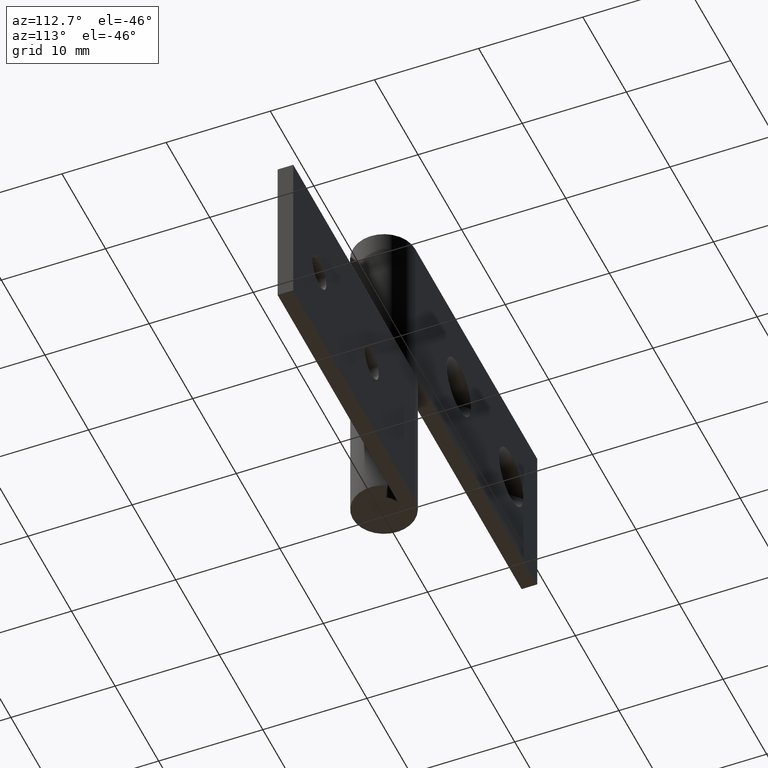
[diagram: clean part render]
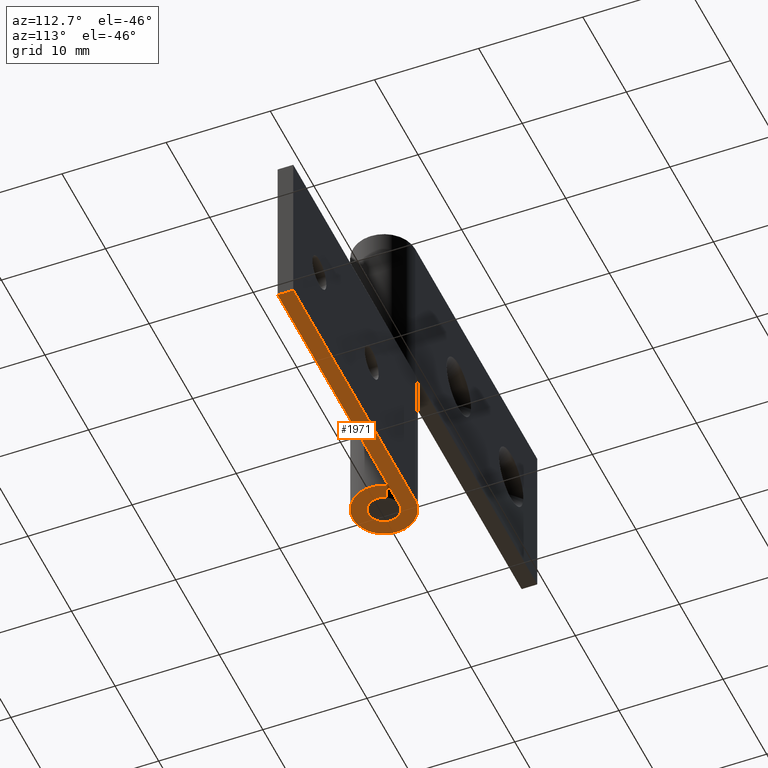
[diagram: same view with one face highlighted and labeled with its STEP entity id]
A machine part, auxiliary view. The second image highlights one B-rep face of the part: STEP entity #1971.
In plain terms, the highlighted face is a freeform B-spline surface patch.
Its self-contained STEP definition (entity closure, byte-faithful):
#1894=CARTESIAN_POINT('',(-4.548398241975407,-3.299492229896964,0.0));
#1895=CARTESIAN_POINT('',(29.548454369752811,-3.299492229896964,0.0));
#1896=CARTESIAN_POINT('',(-4.548398241975407,3.299690265460375,0.0));
#1897=CARTESIAN_POINT('',(29.548454369752811,3.299690265460375,0.0));
#1898=B_SPLINE_SURFACE_WITH_KNOTS('',1,1,((#1894,#1896),(#1895,#1897)),.UNSPECIFIED.,.F.,.F.,.U.,(2,2),(2,2),(0.0,34.096852611728217),(0.0,6.599182495357339),.UNSPECIFIED.);
#1899=CARTESIAN_POINT('',(2.626309197333780,1.450000000000000,0.0));
#1900=VERTEX_POINT('',#1899);
#1901=CARTESIAN_POINT('',(0.0,3.0,0.0));
#1902=VERTEX_POINT('',#1901);
#1903=CARTESIAN_POINT('',(2.626309197333780,1.450000000000000,0.0));
#1904=CARTESIAN_POINT('',(3.733431584505770,-0.555272902071675,0.0));
#1905=CARTESIAN_POINT('',(2.090650590886091,-2.151552952364324,0.0));
#1906=CARTESIAN_POINT('',(0.447869597266413,-3.747833002656972,0.0));
#1907=CARTESIAN_POINT('',(-1.524795068197689,-2.583602136552764,0.0));
#1908=CARTESIAN_POINT('',(-3.497459733661792,-1.419371270448555,0.0));
#1909=CARTESIAN_POINT('',(-2.894028888043301,0.790314364775722,0.0));
#1910=CARTESIAN_POINT('',(-2.290598042424809,3.000000000000000,0.0));
#1911=CARTESIAN_POINT('',(0.0,3.0,0.0));
#1919=(BOUNDED_CURVE()B_SPLINE_CURVE(2,(#1903,#1904,#1905,#1906,#1907,#1908,#1909,#1910,#1911),.UNSPECIFIED.,.F.,.U.)B_SPLINE_CURVE_WITH_KNOTS((3,2,2,2,3),(0.0,0.250000000000000,0.500000000000000,0.750000000000000,1.0),.UNSPECIFIED.)CURVE()GEOMETRIC_REPRESENTATION_ITEM()RATIONAL_B_SPLINE_CURVE((1.0,0.794807562115481,1.0,0.794807562115481,1.0,0.794807562115481,1.0,0.794807562115481,1.0))REPRESENTATION_ITEM(''));
#1920=EDGE_CURVE('',#1900,#1902,#1919,.T.);
#1921=ORIENTED_EDGE('',*,*,#1920,.T.);
#1922=CARTESIAN_POINT('',(28.000008000000001,3.0,0.0));
#1923=VERTEX_POINT('',#1922);
#1924=CARTESIAN_POINT('',(0.0,3.0,0.0));
#1925=CARTESIAN_POINT('',(28.000008000000001,3.0,0.0));
#1926=QUASI_UNIFORM_CURVE('',1,(#1924,#1925),.UNSPECIFIED.,.F.,.U.);
#1927=EDGE_CURVE('',#1902,#1923,#1926,.T.);
#1928=ORIENTED_EDGE('',*,*,#1927,.T.);
#1929=CARTESIAN_POINT('',(28.000008000000001,1.500000000000000,0.0));
#1930=VERTEX_POINT('',#1929);
#1931=CARTESIAN_POINT('',(28.000008000000001,3.0,0.0));
#1932=CARTESIAN_POINT('',(28.000008000000001,1.500000000000000,0.0));
#1933=QUASI_UNIFORM_CURVE('',1,(#1931,#1932),.UNSPECIFIED.,.F.,.U.);
#1934=EDGE_CURVE('',#1923,#1930,#1933,.T.);
#1935=ORIENTED_EDGE('',*,*,#1934,.T.);
#1936=CARTESIAN_POINT('',(0.0,1.500000000000000,0.0));
#1937=VERTEX_POINT('',#1936);
#1938=CARTESIAN_POINT('',(28.000008000000001,1.500000000000000,0.0));
#1939=CARTESIAN_POINT('',(0.0,1.500000000000000,0.0));
#1940=QUASI_UNIFORM_CURVE('',1,(#1938,#1939),.UNSPECIFIED.,.F.,.U.);
#1941=EDGE_CURVE('',#1930,#1937,#1940,.T.);
#1942=ORIENTED_EDGE('',*,*,#1941,.T.);
#1943=CARTESIAN_POINT('',(1.313154598666890,0.725000000000000,0.0));
#1944=VERTEX_POINT('',#1943);
#1945=CARTESIAN_POINT('',(1.313154598666890,0.725000000000000,0.0));
#1946=CARTESIAN_POINT('',(1.866715792252885,-0.277636451035838,0.0));
#1947=CARTESIAN_POINT('',(1.045325295443045,-1.075776476182162,0.0));
#1948=CARTESIAN_POINT('',(0.223934798633207,-1.873916501328486,0.0));
#1949=CARTESIAN_POINT('',(-0.762397534098844,-1.291801068276382,0.0));
#1950=CARTESIAN_POINT('',(-1.748729866830896,-0.709685635224277,0.0));
#1951=CARTESIAN_POINT('',(-1.447014444021651,0.395157182387861,0.0));
#1952=CARTESIAN_POINT('',(-1.145299021212405,1.500000000000000,0.0));
#1953=CARTESIAN_POINT('',(0.0,1.500000000000000,0.0));
#1961=(BOUNDED_CURVE()B_SPLINE_CURVE(2,(#1945,#1946,#1947,#1948,#1949,#1950,#1951,#1952,#1953),.UNSPECIFIED.,.F.,.U.)B_SPLINE_CURVE_WITH_KNOTS((3,2,2,2,3),(0.0,0.250000000000000,0.500000000000000,0.750000000000000,1.0),.UNSPECIFIED.)CURVE()GEOMETRIC_REPRESENTATION_ITEM()RATIONAL_B_SPLINE_CURVE((1.0,0.794807562115481,1.0,0.794807562115481,1.0,0.794807562115481,1.0,0.794807562115481,1.0))REPRESENTATION_ITEM(''));
#1962=EDGE_CURVE('',#1944,#1937,#1961,.T.);
#1963=ORIENTED_EDGE('',*,*,#1962,.F.);
#1964=CARTESIAN_POINT('',(1.313154598666890,0.725000000000000,0.0));
#1965=CARTESIAN_POINT('',(2.626309197333780,1.450000000000000,0.0));
#1966=QUASI_UNIFORM_CURVE('',1,(#1964,#1965),.UNSPECIFIED.,.F.,.U.);
#1967=EDGE_CURVE('',#1944,#1900,#1966,.T.);
#1968=ORIENTED_EDGE('',*,*,#1967,.T.);
#1969=EDGE_LOOP('',(#1921,#1928,#1935,#1942,#1963,#1968));
#1970=FACE_OUTER_BOUND('',#1969,.T.);
#1971=ADVANCED_FACE('',(#1970),#1898,.F.);